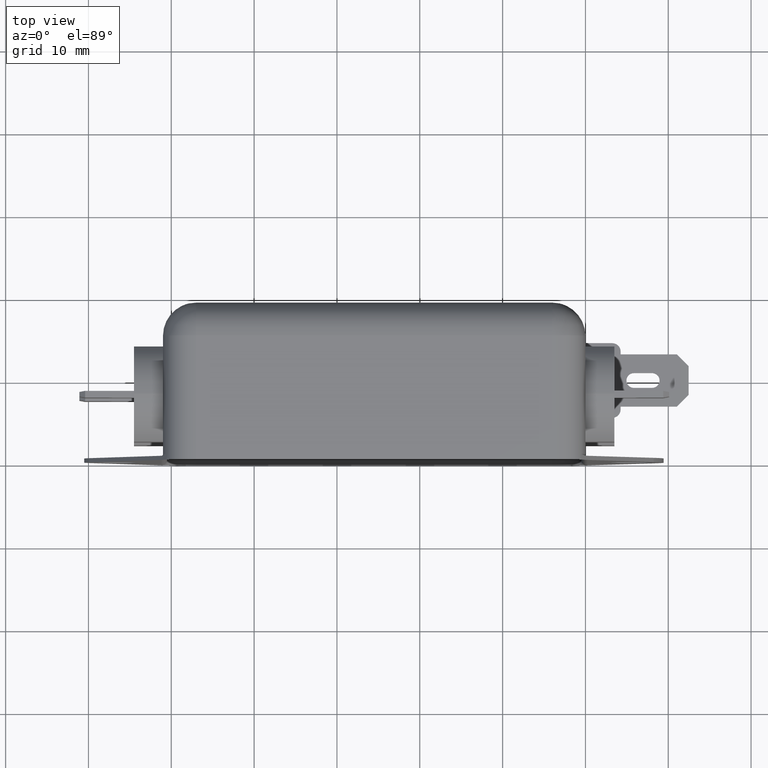
[diagram: clean part render]
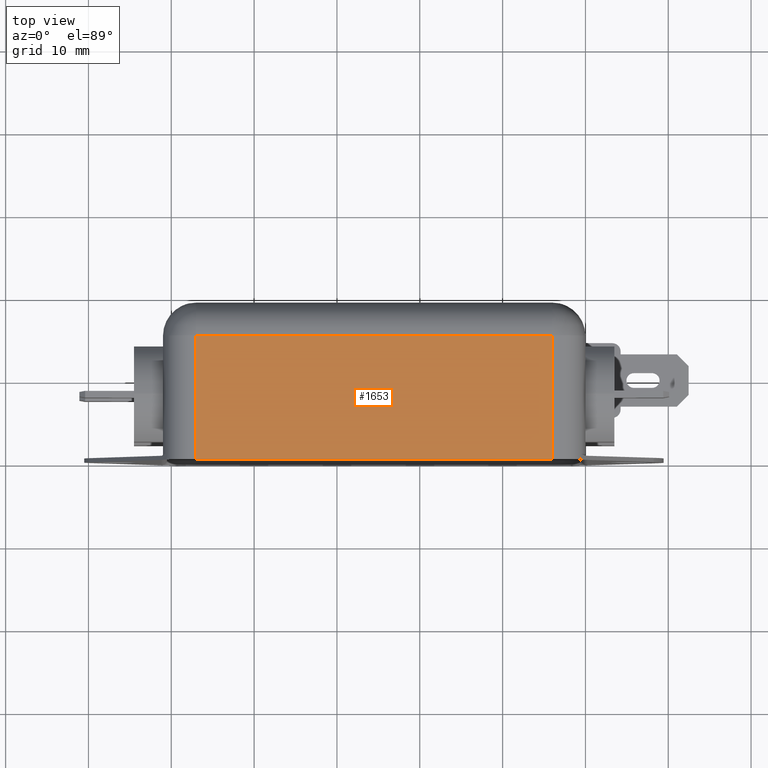
[diagram: same view with one face highlighted and labeled with its STEP entity id]
A machine part, top view. The second image highlights one B-rep face of the part: STEP entity #1653.
In plain terms, the highlighted planar face has unit normal (-0, -0, -1).
Its self-contained STEP definition (entity closure, byte-faithful):
#1653=ADVANCED_FACE('NONE',(#4314),#4315,.F.);
#1821=EDGE_CURVE('NONE',#4572,#4505,#4573,.T.);
#1927=EDGE_CURVE('NONE',#4505,#4716,#4719,.T.);
#2055=EDGE_CURVE('NONE',#4698,#4572,#4889,.T.);
#2075=EDGE_CURVE('NONE',#4716,#4698,#4913,.T.);
#4314=FACE_OUTER_BOUND('',#7802,.T.);
#4315=PLANE('',#7803);
#4505=VERTEX_POINT('NONE',#8037);
#4572=VERTEX_POINT('NONE',#8151);
#4573=LINE('',#8152,#8153);
#4698=VERTEX_POINT('NONE',#8364);
#4716=VERTEX_POINT('NONE',#8393);
#4719=LINE('',#8397,#8398);
#4889=LINE('',#8687,#8688);
#4913=LINE('',#8726,#8727);
#7802=EDGE_LOOP('',(#13181,#13182,#13183,#13184));
#7803=AXIS2_PLACEMENT_3D('',#13185,#13186,#13187);
#8037=CARTESIAN_POINT('',(-21.5,18.9708203932499,-22.5));
#8151=CARTESIAN_POINT('',(-21.5,4.0,-22.5));
#8152=CARTESIAN_POINT('',(-21.5,19.0,-22.5));
#8153=VECTOR('',#13643,1.0);
#8364=CARTESIAN_POINT('',(21.5,4.0,-22.5));
#8393=CARTESIAN_POINT('',(21.5,18.9708203932499,-22.5));
#8397=CARTESIAN_POINT('',(-25.5,18.9708203932499,-22.5));
#8398=VECTOR('',#13728,1.0);
#8687=CARTESIAN_POINT('',(-25.5,4.0,-22.5));
#8688=VECTOR('',#13808,1.0);
#8726=CARTESIAN_POINT('',(21.5,19.0,-22.5));
#8727=VECTOR('',#13828,1.0);
#13181=ORIENTED_EDGE('',*,*,#1821,.T.);
#13182=ORIENTED_EDGE('',*,*,#1927,.T.);
#13183=ORIENTED_EDGE('',*,*,#2075,.T.);
#13184=ORIENTED_EDGE('',*,*,#2055,.T.);
#13185=CARTESIAN_POINT('',(-25.5,19.0,-22.5));
#13186=DIRECTION('',(0.0,0.0,1.0));
#13187=DIRECTION('',(1.0,0.0,0.0));
#13643=DIRECTION('',(0.0,1.0,0.0));
#13728=DIRECTION('',(1.0,0.0,0.0));
#13808=DIRECTION('',(-1.0,0.0,0.0));
#13828=DIRECTION('',(0.0,-1.0,0.0));